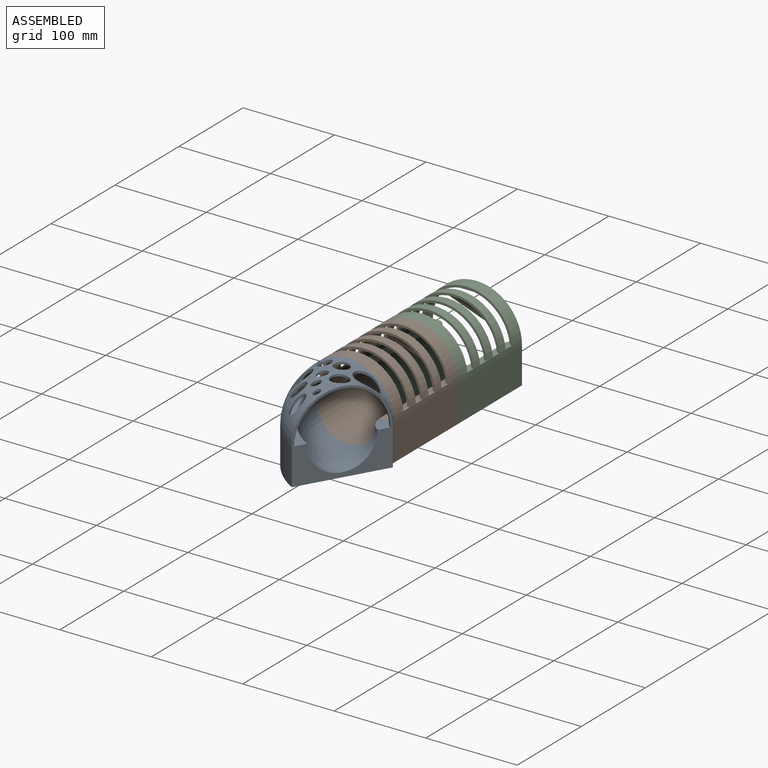
[diagram: assembled view]
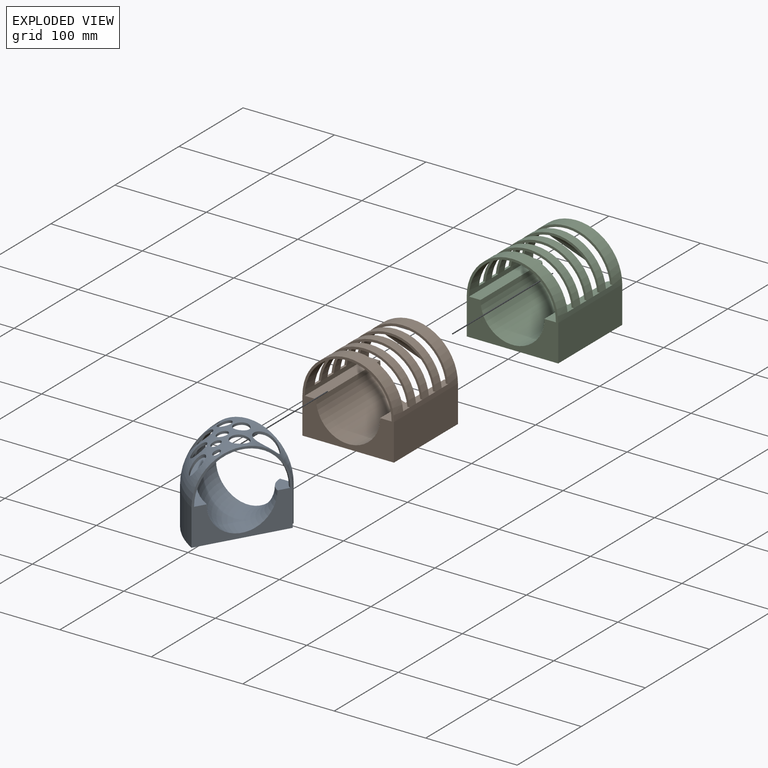
[diagram: exploded view]
GUIDED TOUR — MATED ASSEMBLY WITH SUBASSEMBLIES (Onshape document 4bfa7bd6c14763e04afc0b8b, AutoMate assembly 4bfa7bd6c14763e04afc0b8b_56770ba44863dff61e835462_78e4583de821c95102a4897f_default)

This assembly has 6 component occurrences arranged in 3 top-level units: 0 individual components plus 3 subassemblies (S0, S1, S2). The tour has two levels: first the top level, where each subassembly is treated as one rigid unit; then each subassembly is toured internally in its own section (nesting deeper than one subassembly level is flattened into its subassembly's section).

Components are labeled P0..P5 across the whole record; subassembly units are labeled S0..S2. A mate is a constraint between two units; its type names the relative motion it leaves free:
  FASTENED — locks the two components together rigidly (no relative motion).
Axis/direction vectors are unit vectors and 'through' points are millimeter coordinates, both in the assembly's world frame.

TOP-LEVEL MATES (between units; each subassembly's internal mates are listed in its own section)
  1. FASTENED "Fastened 2": S0 <-> S1, direction (0.000, 1.000, 0.000) through (-1.99, -146.95, 1.31) mm
  2. FASTENED "Fastened 1": S1 <-> S2, direction (0.000, 1.000, 0.000) through (-1.99, -46.95, 1.31) mm

TOP-LEVEL ASSEMBLY ORDER
  1. S1 — the base component [order verified]
  2. S0 [order verified]
  3. S2 [order verified]
Order-tag legend:
  [order verified] — this step's position reverses a verified removal order: the component was checked to insert without passing through the ones already placed.

Of the 6 component occurrences, 4 carry the full construction recipe — the FeatureScript program that regenerates the part's solid from scratch; the rest are supplied as boundary geometry only. Each toured unit is shown spotlighted twice — assembled, then exploded with a leader line back to its socket (green = recipe-attached component, orange = geometry-only, blue = subassembly unit; the rest desaturated gray).
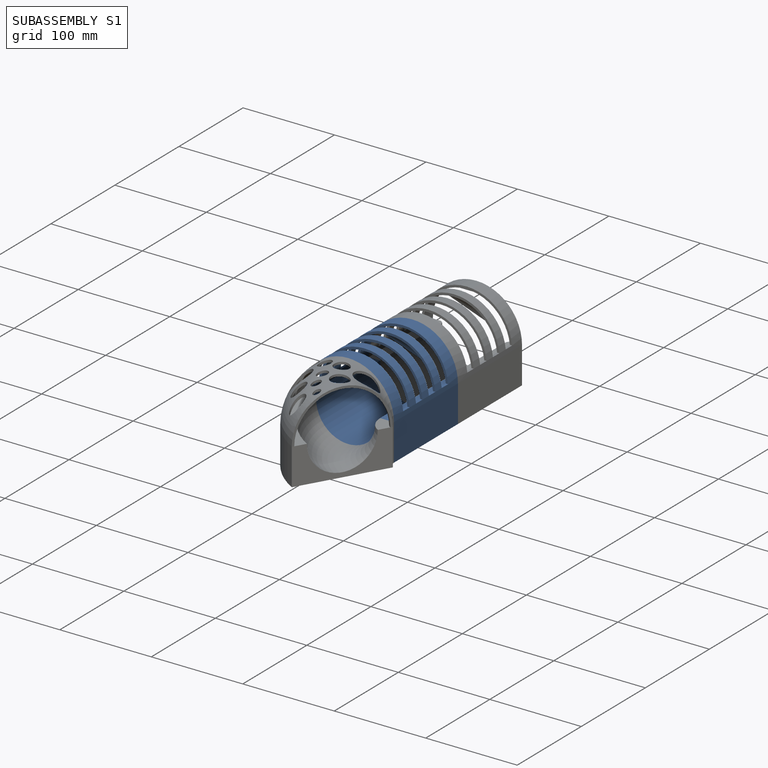
[diagram: subassembly S1 — assembled]
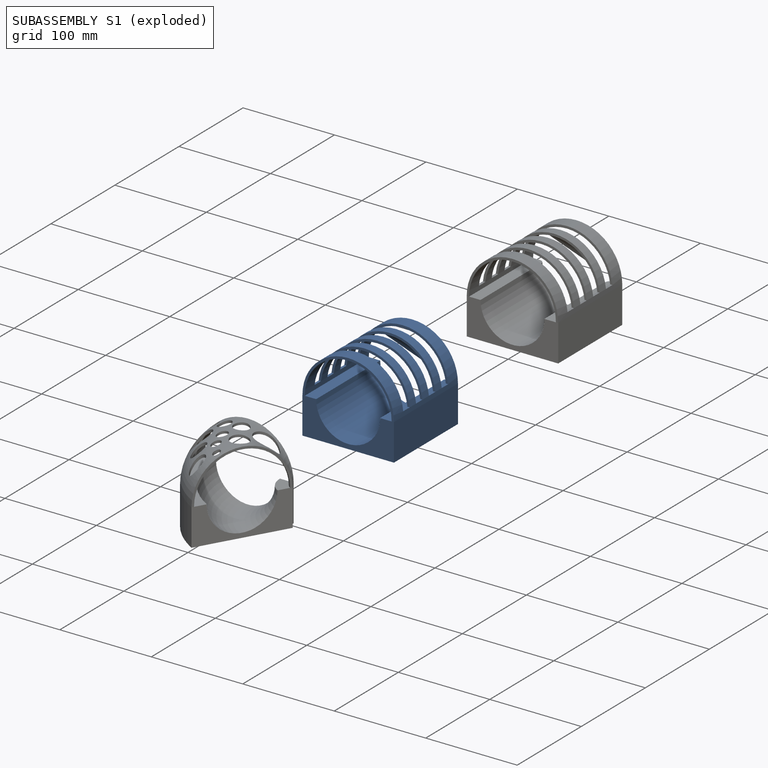
[diagram: subassembly S1 — exploded]
SUBASSEMBLY S1 — 2 components (P1, P4), of which 1 recipe-attached; toured below.
Held by: FASTENED mate "Fastened 2" to S0; FASTENED mate "Fastened 1" to S2.
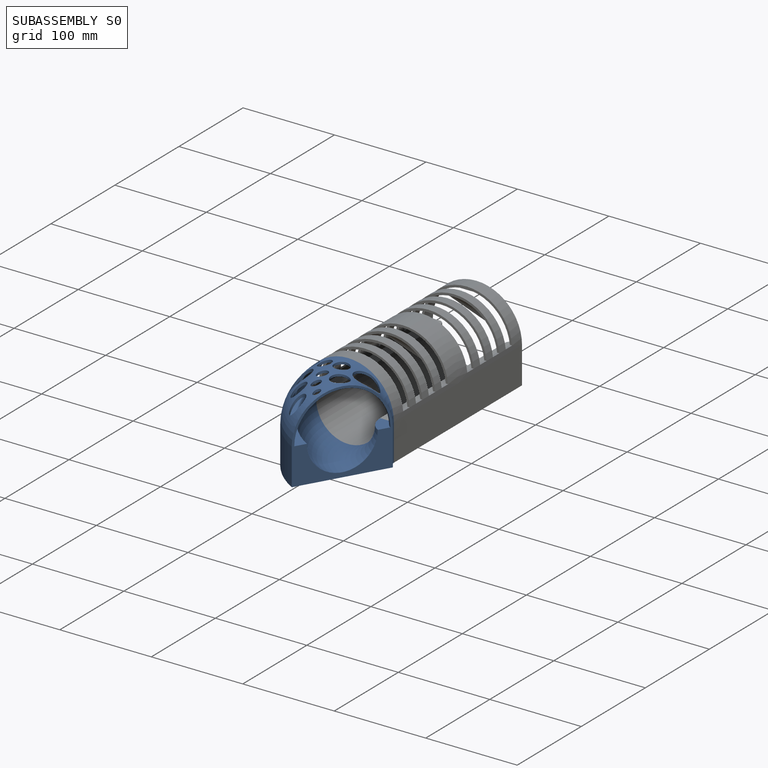
[diagram: subassembly S0 — assembled]
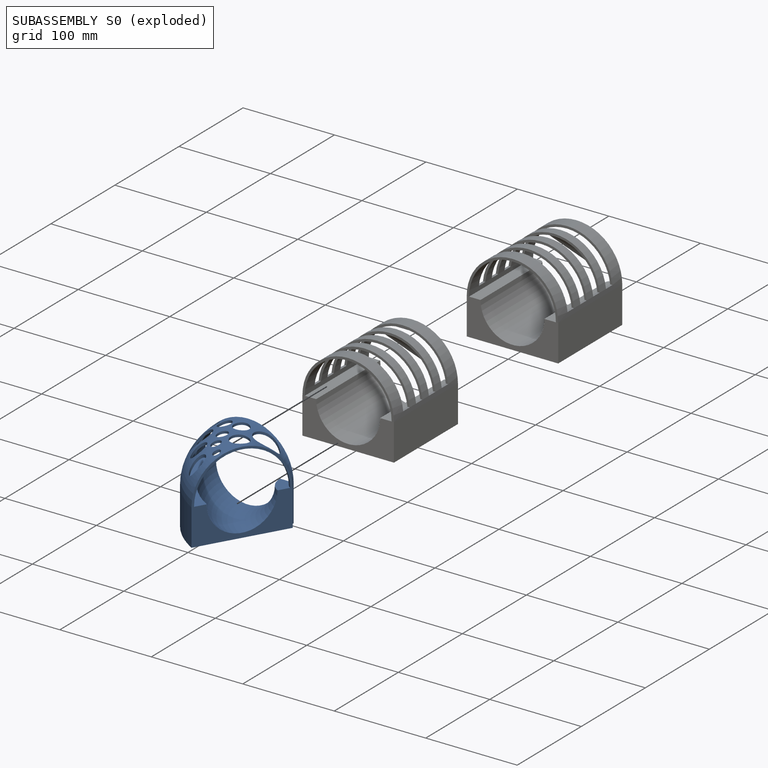
[diagram: subassembly S0 — exploded]
SUBASSEMBLY S0 — 2 components (P0, P5), of which 2 recipe-attached; toured below.
Held by: FASTENED mate "Fastened 2" to S1.
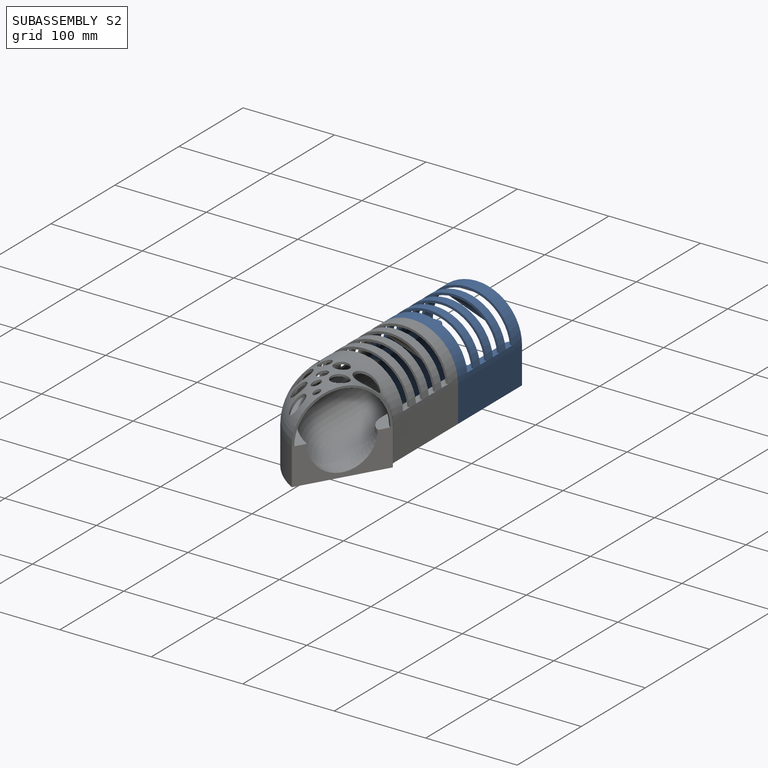
[diagram: subassembly S2 — assembled]
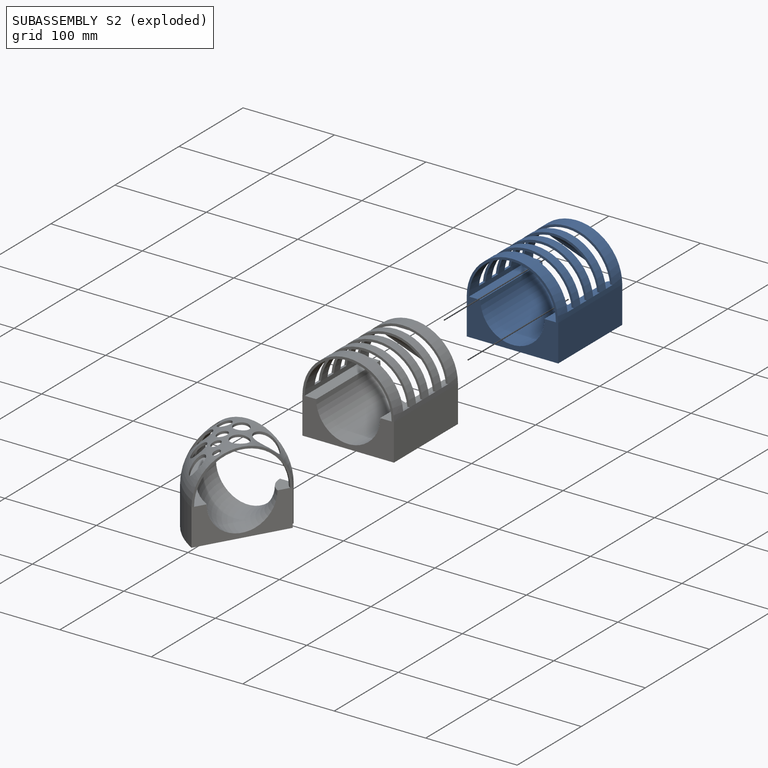
[diagram: subassembly S2 — exploded]
SUBASSEMBLY S2 — 2 components (P2, P3), of which 1 recipe-attached; toured below.
Held by: FASTENED mate "Fastened 1" to S1.
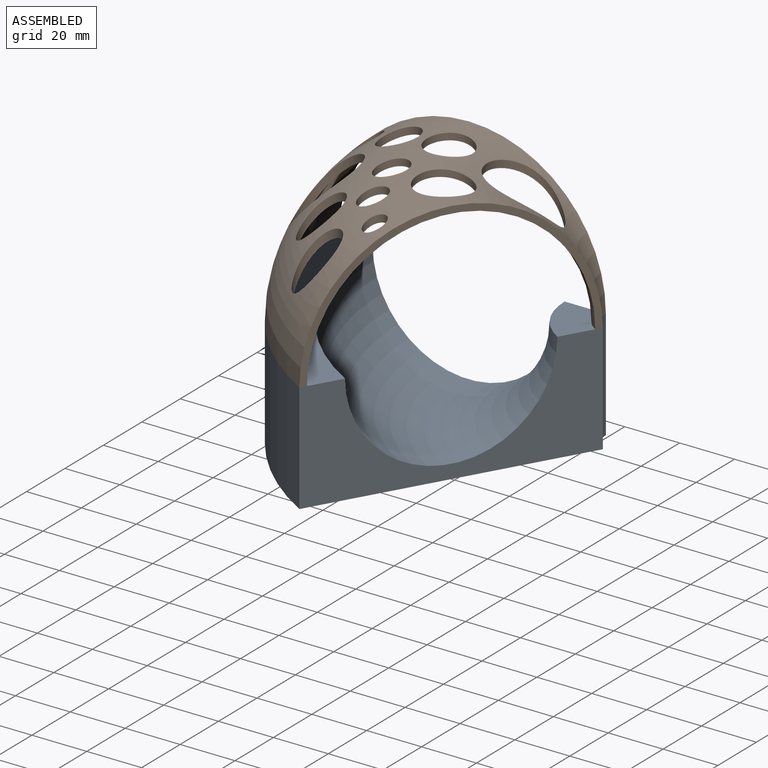
[diagram: subassembly S0 — assembled view]
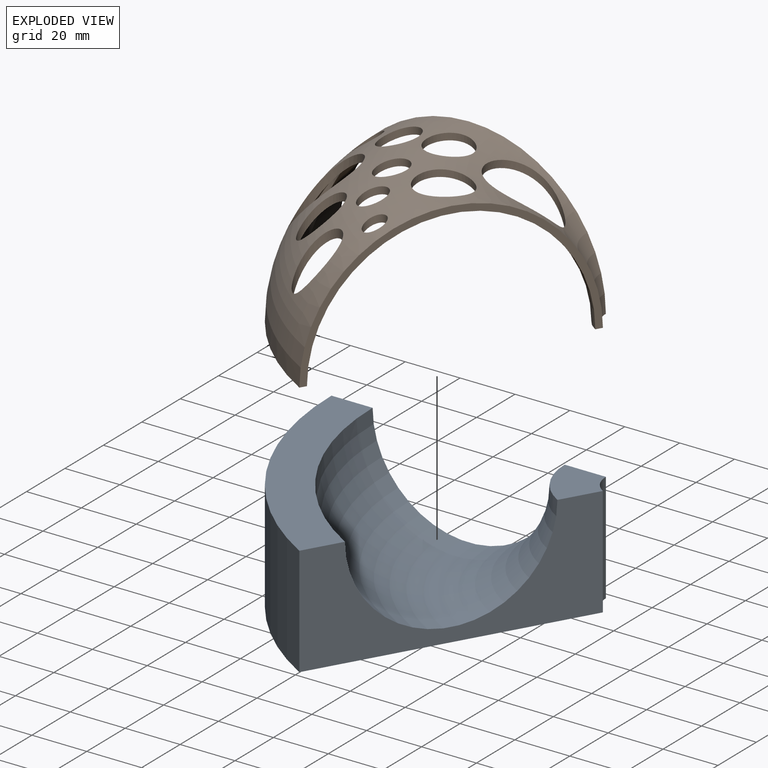
[diagram: subassembly S0 — exploded view]
SUBASSEMBLY S0 TOUR — 2 components, shown here in isolation at its own camera.

INTERNAL MATES
  1. FASTENED "Fastened 1": P5 <-> P0, direction (0.000, 0.000, -1.000) through (58.01, -146.95, 1.31) mm
  2. FASTENED "Fastened 1": P5 <-> P0, direction (0.000, 0.000, -1.000) through (58.01, -146.95, 1.31) mm

ASSEMBLY ORDER (within the subassembly)
  1. P5 — the base component [order verified]
  2. P0 [order verified]
Order-tag legend:
  [order verified] — this step's position reverses a verified removal order: the component was checked to insert without passing through the ones already placed.
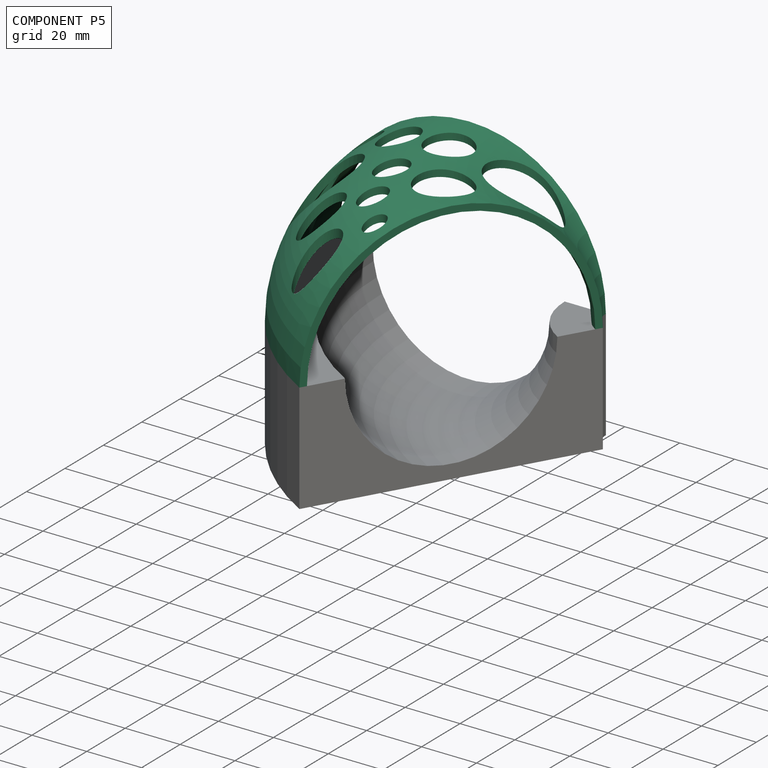
[diagram: component P5 — assembled]
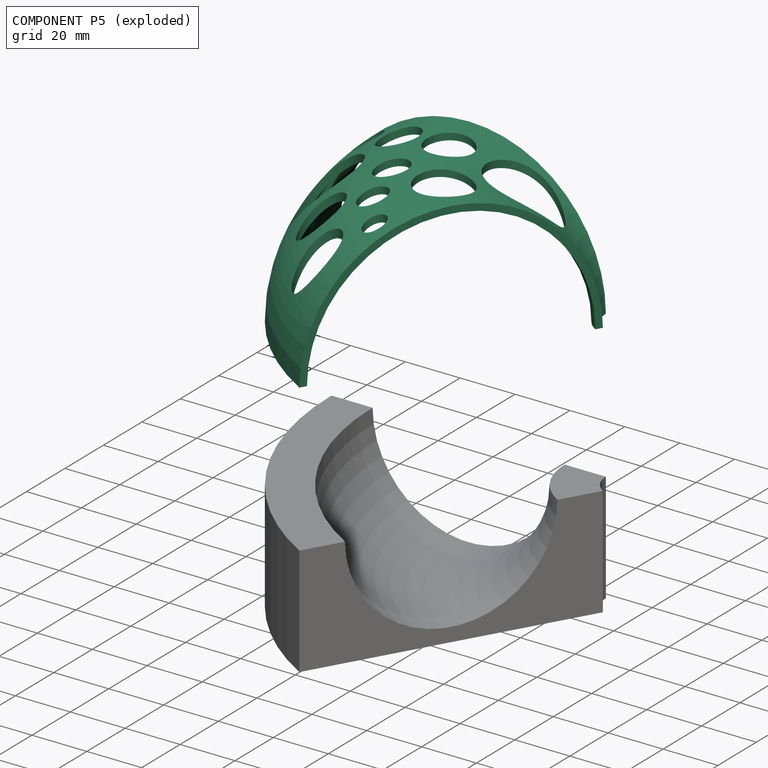
[diagram: component P5 — exploded]
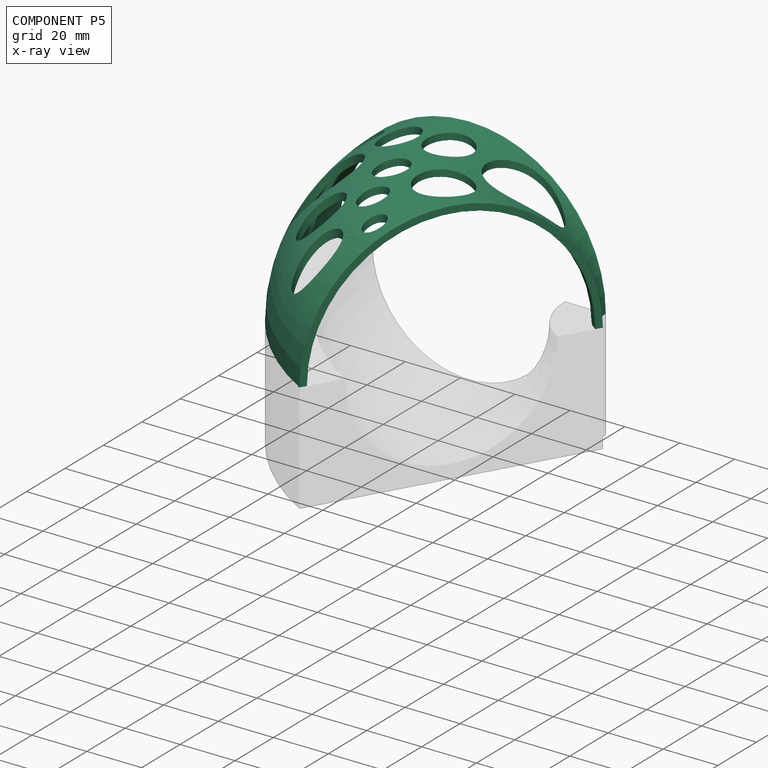
[diagram: component P5 — x-ray view]
COMPONENT P5 — recipe-attached (CADFS 00204274, mesh-verified: the recipe's output STEP matches this component's geometry to below the mesh-comparison resolution (tessellation chordal tolerance ~0.225 mm)).
Held by: FASTENED mate "Fastened 1" to P0; FASTENED mate "Fastened 1" to P0.
Construction recipe (FeatureScript — the CAD program that rebuilds this solid; sketch coordinates are in the units given by the * unit suffixes, e.g. mm):

FeatureScript 1511;
import(path : "onshape/std/geometry.fs", version : "1511.0");
import(path : "onshape/std/common.fs", version : "1511.0");
const mm = millimeter;
const VERTEX = EntityType.VERTEX;
const EDGE = EntityType.EDGE;
const FACE = EntityType.FACE;
const BODY = EntityType.BODY;
function v(x, y){return vector(x, y);}
function OD(order){return orderDisambiguation(order);}
function OSD(set){return originalSetDisambiguation(set);}
function TD(topology){return topologyDisambiguation(topology);}
function TDD(query){return trueDependencyDisambiguation(query);}
function sQuery(a, b, c) {return sketchEntityQuery(a, b, c);}

annotation { "Feature Type Name" : "Feature", "Feature Type Description" : "" }
export const myFeature = defineFeature(function(context is Context, id is Id, definition is map)
    precondition{}
    {
        {
            var Q0;
            Q0=qCreatedBy(makeId("Front.planeOp"),FACE);
            var sketch = newSketch(context, id + "F0", { "sketchPlane" : qUnion([Q0])});
            skArc(sketch, "E0", {"start": v(47.5, -15.52) * mm, "mid": v(0, 31.98) * mm, "end": v(-47.5, -15.52) * mm});
            skArc(sketch, "E1", {"start": v(50, -15.52) * mm, "mid": v(0, 34.48) * mm, "end": v(-50, -15.52) * mm});
            skLineSegment(sketch, "E2", {"start": v(-50, -15.52) * mm, "end": v(-47.5, -15.52) * mm});
            skLineSegment(sketch, "E3.trimOffspring", {"start": v(47.5, -15.52) * mm, "end": v(50, -15.52) * mm});
            skLineSegment(sketch, "E4", {"start": v(60, -15.52) * mm, "end": v(60, 3.24) * mm, "construction": true});
            skSolve(sketch);
        }
        {
            var Q0;
            Q0 = qSketchRegion(id + "F0", true);
            var Q1;
            Q1=sQuery(id+"F0.wireOp",EDGE,"E4");
            revolve(context, id + "F1", {"entities" : qUnion([Q0]), "axis" : qUnion([Q1]), "revolveType" : RevolveType.ONE_DIRECTION, "oppositeDirection" : true, "angle" : 60 * degree});
        }
        {
            var Q0;
            Q0=qCreatedBy(makeId("Top.planeOp"),FACE);
            var sketch = newSketch(context, id + "F2", { "sketchPlane" : qUnion([Q0])});
            skCircle(sketch, "E5", {"center": v(-5.04, 78.5) * mm, "radius": 4.99 * mm});
            skCircle(sketch, "E6", {"center": v(-13.99, 58.01) * mm, "radius": 11.47 * mm});
            skCircle(sketch, "E7", {"center": v(-25.76, 36.36) * mm, "radius": 7.6 * mm});
            skCircle(sketch, "E8", {"center": v(9.08, 56.37) * mm, "radius": 7.15 * mm});
            skCircle(sketch, "E9", {"center": v(17.8, 39.65) * mm, "radius": 8.24 * mm});
            skCircle(sketch, "E10", {"center": v(4.84, 15.64) * mm, "radius": 9.8 * mm});
            skCircle(sketch, "E11", {"center": v(-3.16, 35.18) * mm, "radius": 5.91 * mm});
            skCircle(sketch, "E12", {"center": v(-21.29, 8.34) * mm, "radius": 3.9 * mm});
            skCircle(sketch, "E13", {"center": v(-35.65, 18) * mm, "radius": 7.7 * mm});
            skCircle(sketch, "E14", {"center": v(-14.93, 23.17) * mm, "radius": 5.07 * mm});
            skCircle(sketch, "E15", {"center": v(31.92, 17.29) * mm, "radius": 12.5 * mm});
            skCircle(sketch, "E16", {"center": v(6.26, 72.37) * mm, "radius": 4.99 * mm});
            skSolve(sketch);
        }
        {
            var Q0;
            Q0 = qSketchRegion(id + "F2", true);
            var Q1;
            Q1=sQuery(id+"F2.wireOp",EDGE,"E16");
            extrude(context, id + "F3", {"entities" : qUnion([Q0]), "operationType" : NewBodyOperationType.REMOVE, "surfaceEntities" : qUnion([Q1]), "depth" : 40 * mm, "hasSecondDirection" : true, "secondDirectionOppositeDirection" : true, "secondDirectionDepth" : 25 * mm});
        }
    });
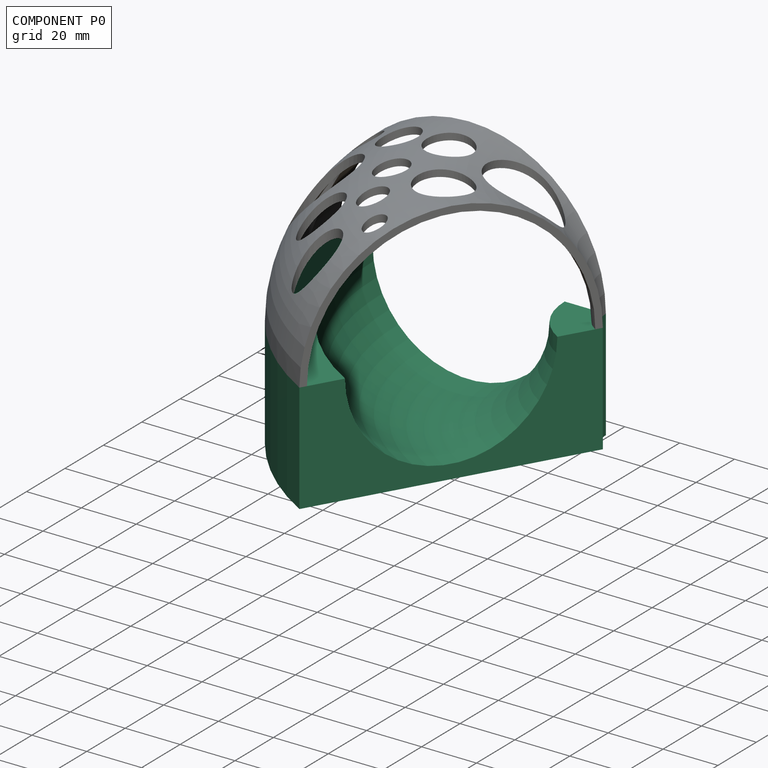
[diagram: component P0 — assembled]
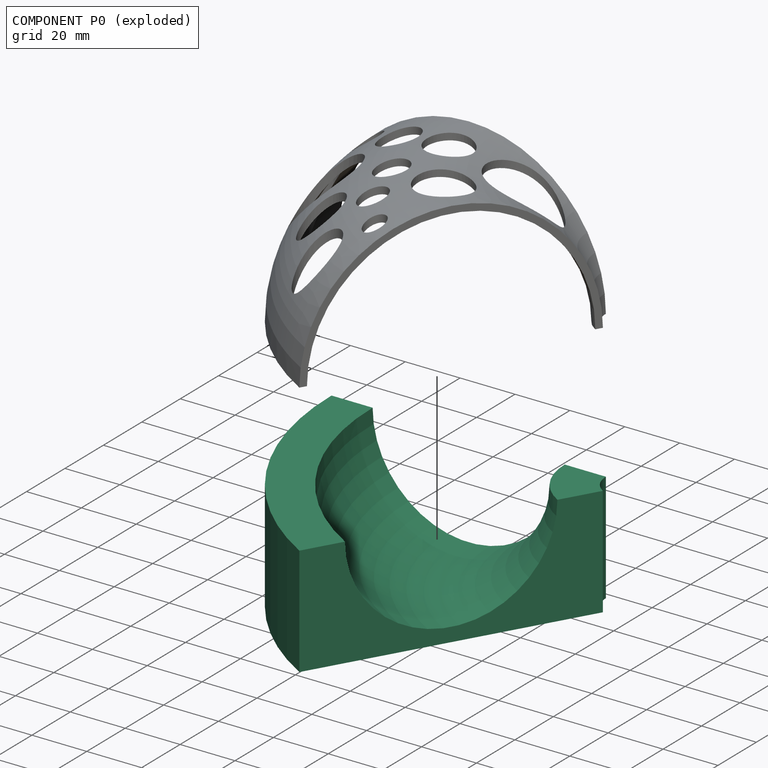
[diagram: component P0 — exploded]
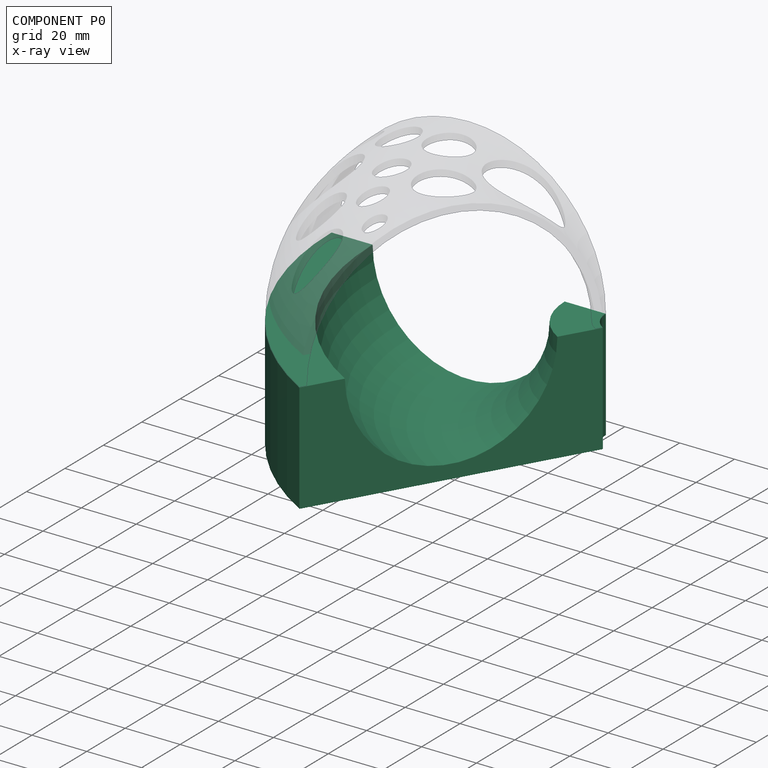
[diagram: component P0 — x-ray view]
COMPONENT P0 — recipe-attached (CADFS 00204273, mesh-verified: the recipe's output STEP matches this component's geometry to below the mesh-comparison resolution (tessellation chordal tolerance ~0.221 mm)).
Held by: FASTENED mate "Fastened 1" to P5; FASTENED mate "Fastened 1" to P5.
Construction recipe (FeatureScript — the CAD program that rebuilds this solid; sketch coordinates are in the units given by the * unit suffixes, e.g. mm):

FeatureScript 1511;
import(path : "onshape/std/geometry.fs", version : "1511.0");
import(path : "onshape/std/common.fs", version : "1511.0");
const mm = millimeter;
const VERTEX = EntityType.VERTEX;
const EDGE = EntityType.EDGE;
const FACE = EntityType.FACE;
const BODY = EntityType.BODY;
function v(x, y){return vector(x, y);}
function OD(order){return orderDisambiguation(order);}
function OSD(set){return originalSetDisambiguation(set);}
function TD(topology){return topologyDisambiguation(topology);}
function TDD(query){return trueDependencyDisambiguation(query);}
function sQuery(a, b, c) {return sketchEntityQuery(a, b, c);}

annotation { "Feature Type Name" : "Feature", "Feature Type Description" : "" }
export const myFeature = defineFeature(function(context is Context, id is Id, definition is map)
    precondition{}
    {
        {
            var Q0;
            Q0=qCreatedBy(makeId("Front.planeOp"),FACE);
            var sketch = newSketch(context, id + "F0", { "sketchPlane" : qUnion([Q0])});
            skLineSegment(sketch, "E0.bottom", {"start": v(-50, -19.67) * mm, "end": v(0, -19.67) * mm});
            skLineSegment(sketch, "E0.top", {"start": v(-50, 20.33) * mm, "end": v(0, 20.33) * mm});
            skLineSegment(sketch, "E0.left", {"start": v(-50, -19.67) * mm, "end": v(-50, 20.33) * mm});
            skLineSegment(sketch, "E1.MirrorCS", {"start": v(50, -19.67) * mm, "end": v(0, -19.67) * mm});
            skLineSegment(sketch, "E2.MirrorCS", {"start": v(50, -19.67) * mm, "end": v(50, 20.33) * mm});
            skLineSegment(sketch, "E3.MirrorCS", {"start": v(50, 20.33) * mm, "end": v(0, 20.33) * mm});
            skArc(sketch, "E4", {"start": v(-35, 20.33) * mm, "mid": v(0, -14.67) * mm, "end": v(35, 20.33) * mm});
            skLineSegment(sketch, "E5", {"start": v(50, 20.33) * mm, "end": v(60, 20.33) * mm, "construction": true});
            skLineSegment(sketch, "E6", {"start": v(60, 20.33) * mm, "end": v(60, -18.07) * mm, "construction": true});
            skSolve(sketch);
        }
        {
            var Q0;
            Q0=makeQuery(id+"F0.imprint","IMPRINT",FACE,{"disambiguationData":[TD([[makeQuery(id+"F0.imprint","IMPRINT",EDGE,{"derivedFrom":sQuery(id+"F0.wireOp",EDGE,"E0.bottom")}),1.0]])]});
            var Q1;
            Q1=sQuery(id+"F0.wireOp",EDGE,"E6");
            revolve(context, id + "F1", {"entities" : qUnion([Q0]), "axis" : qUnion([Q1]), "revolveType" : RevolveType.ONE_DIRECTION, "angle" : 60 * degree});
        }
    });
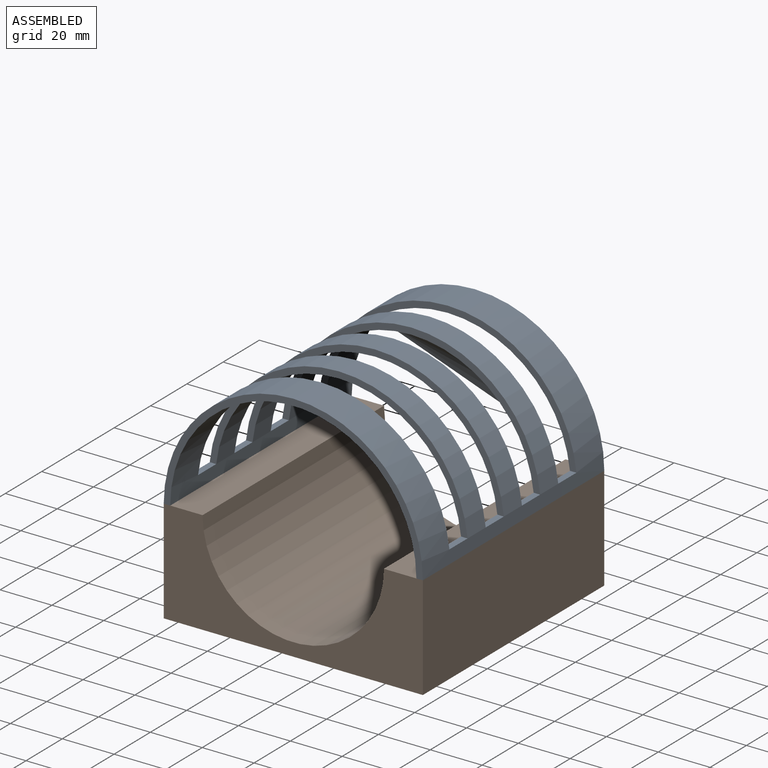
[diagram: subassembly S1 — assembled view]
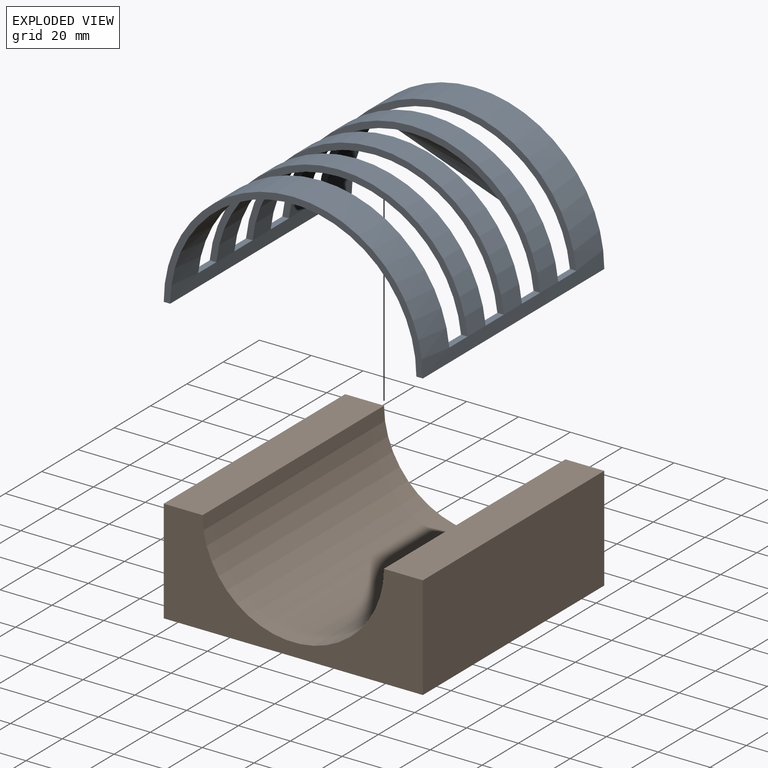
[diagram: subassembly S1 — exploded view]
SUBASSEMBLY S1 TOUR — 2 components, shown here in isolation at its own camera.

INTERNAL MATES
  1. FASTENED "Fastened 1": P1 <-> P4, direction (0.000, 0.000, -1.000) through (48.01, -96.95, 1.31) mm
  2. FASTENED "Fastened 1": P1 <-> P4, direction (0.000, 0.000, -1.000) through (48.01, -96.95, 1.31) mm

ASSEMBLY ORDER (within the subassembly)
  1. P4 — the base component [order verified]
  2. P1 [order verified]
Order-tag legend:
  [order verified] — this step's position reverses a verified removal order: the component was checked to insert without passing through the ones already placed.
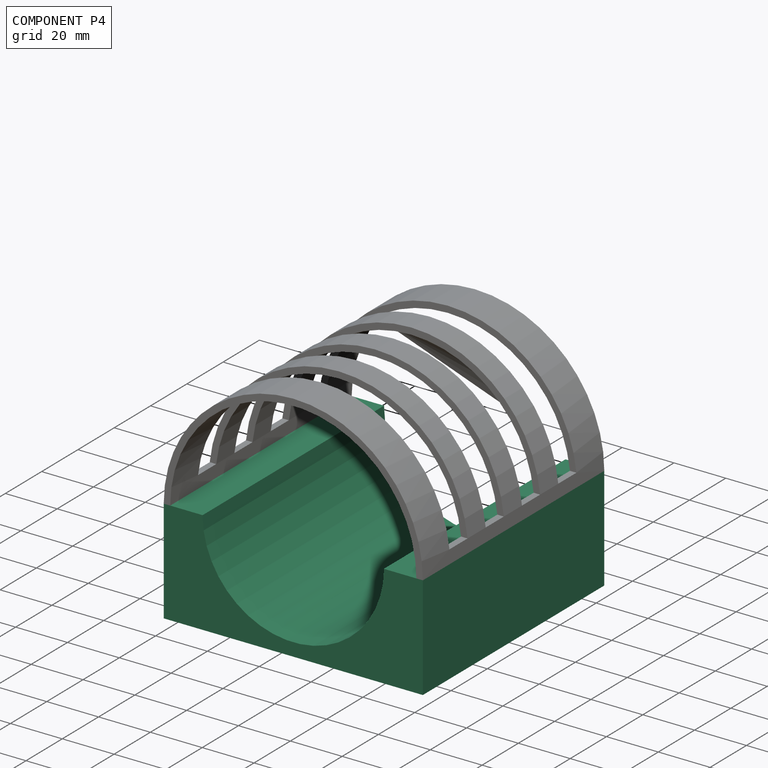
[diagram: component P4 — assembled]
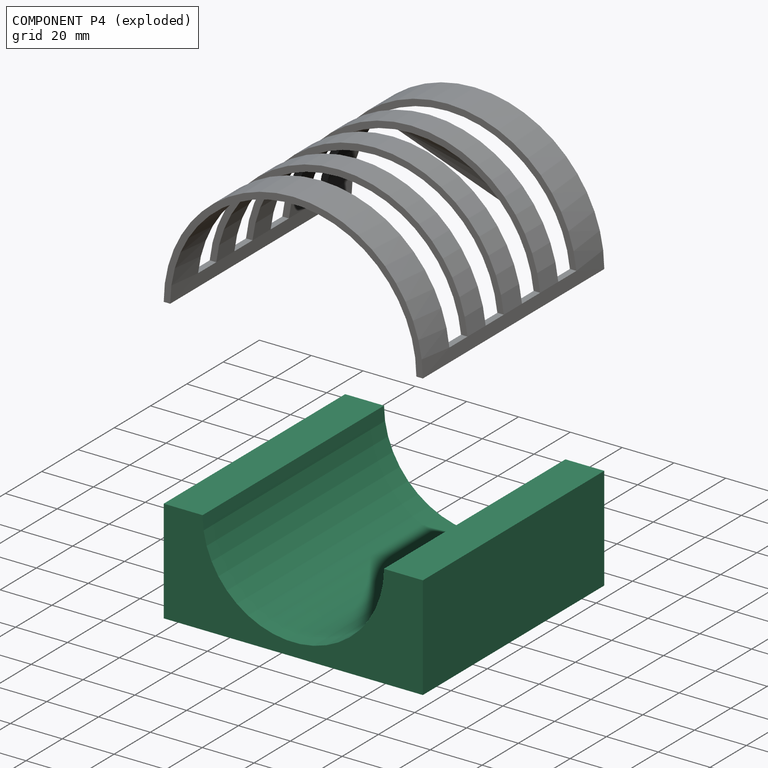
[diagram: component P4 — exploded]
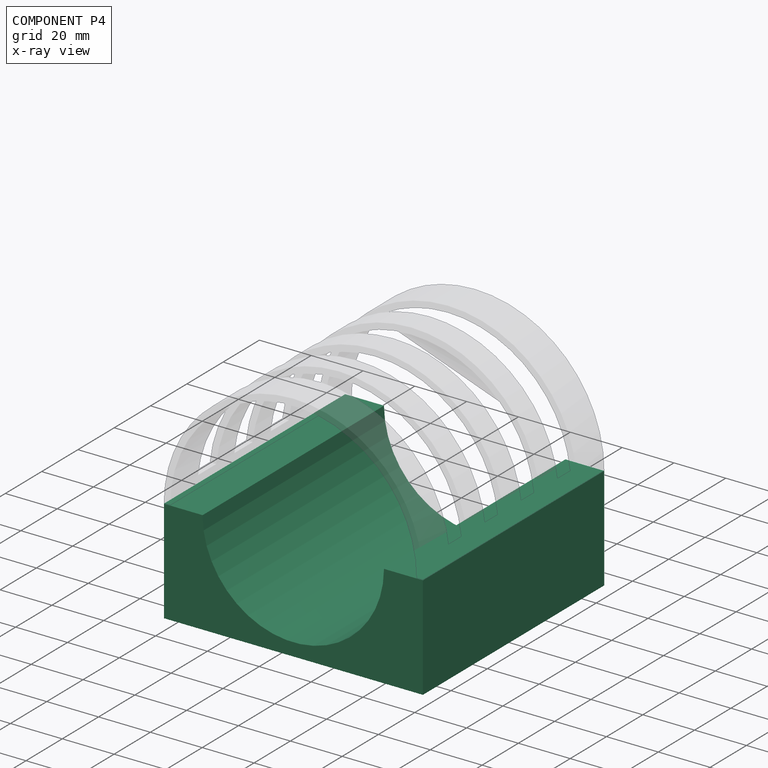
[diagram: component P4 — x-ray view]
COMPONENT P4 — recipe-attached (CADFS 00204271, mesh-verified: the recipe's output STEP matches this component's geometry to below the mesh-comparison resolution (tessellation chordal tolerance ~0.22 mm)).
Held by: FASTENED mate "Fastened 1" to P1; FASTENED mate "Fastened 1" to P1.
Construction recipe (FeatureScript — the CAD program that rebuilds this solid; sketch coordinates are in the units given by the * unit suffixes, e.g. mm):

FeatureScript 1511;
import(path : "onshape/std/geometry.fs", version : "1511.0");
import(path : "onshape/std/common.fs", version : "1511.0");
const mm = millimeter;
const VERTEX = EntityType.VERTEX;
const EDGE = EntityType.EDGE;
const FACE = EntityType.FACE;
const BODY = EntityType.BODY;
function v(x, y){return vector(x, y);}
function OD(order){return orderDisambiguation(order);}
function OSD(set){return originalSetDisambiguation(set);}
function TD(topology){return topologyDisambiguation(topology);}
function TDD(query){return trueDependencyDisambiguation(query);}
function sQuery(a, b, c) {return sketchEntityQuery(a, b, c);}

annotation { "Feature Type Name" : "Feature", "Feature Type Description" : "" }
export const myFeature = defineFeature(function(context is Context, id is Id, definition is map)
    precondition{}
    {
        {
            var Q0;
            Q0=qCreatedBy(makeId("Front.planeOp"),FACE);
            var sketch = newSketch(context, id + "F0", { "sketchPlane" : qUnion([Q0])});
            skLineSegment(sketch, "E0.bottom", {"start": v(-50, 0) * mm, "end": v(0, 0) * mm});
            skLineSegment(sketch, "E0.top", {"start": v(-50, 40) * mm, "end": v(0, 40) * mm});
            skLineSegment(sketch, "E0.left", {"start": v(-50, 0) * mm, "end": v(-50, 40) * mm});
            skLineSegment(sketch, "E1.MirrorCS", {"start": v(50, 0) * mm, "end": v(0, 0) * mm});
            skLineSegment(sketch, "E2.MirrorCS", {"start": v(50, 0) * mm, "end": v(50, 40) * mm});
            skLineSegment(sketch, "E3.MirrorCS", {"start": v(50, 40) * mm, "end": v(0, 40) * mm});
            skArc(sketch, "E4", {"start": v(-35, 40) * mm, "mid": v(0, 5) * mm, "end": v(35, 40) * mm});
            skSolve(sketch);
        }
        {
            var Q0;
            Q0=makeQuery(id+"F0.imprint","IMPRINT",FACE,{"disambiguationData":[TD([[makeQuery(id+"F0.imprint","IMPRINT",EDGE,{"derivedFrom":sQuery(id+"F0.wireOp",EDGE,"E0.bottom")}),1.0]])]});
            extrude(context, id + "F1", {"entities" : qUnion([Q0]), "endBound" : BoundingType.SYMMETRIC, "depth" : 100 * mm});
        }
    });
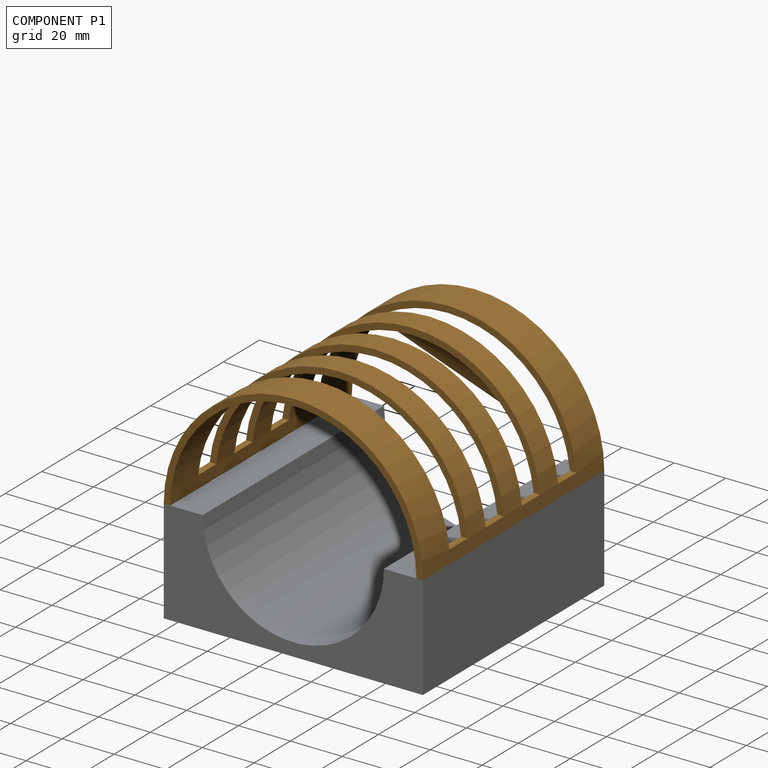
[diagram: component P1 — assembled]
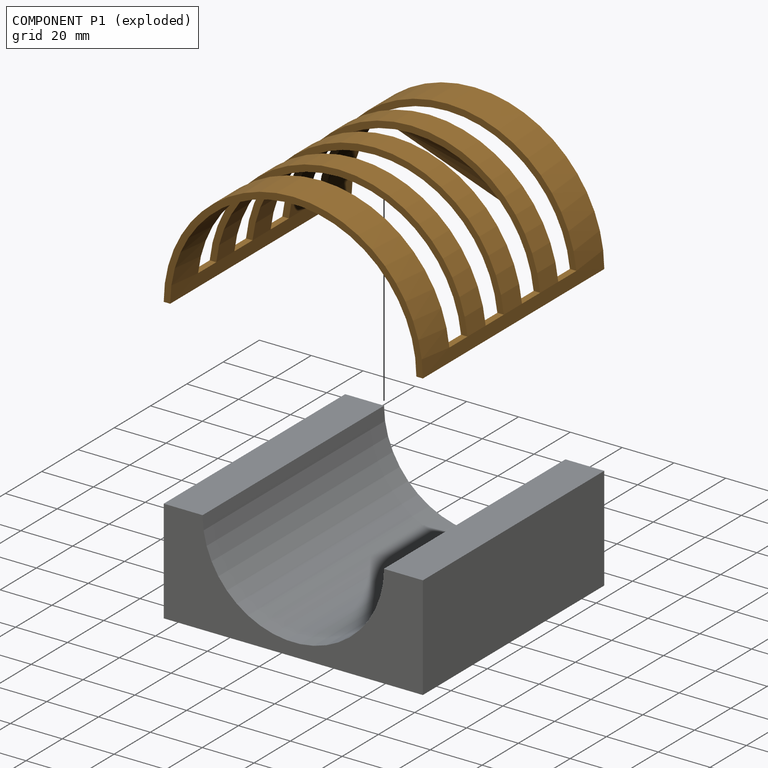
[diagram: component P1 — exploded]
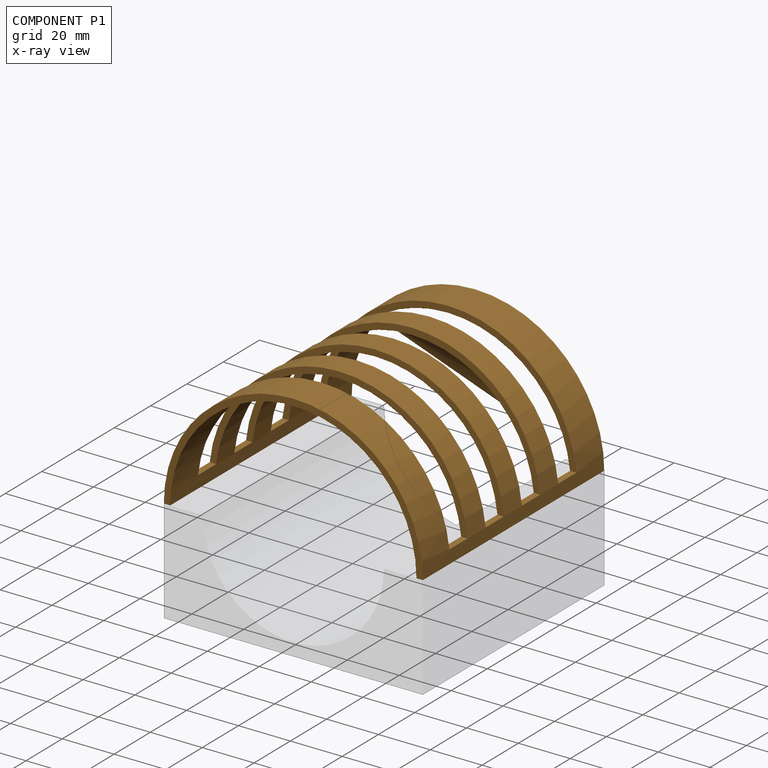
[diagram: component P1 — x-ray view]
COMPONENT P1 — geometry summary (no construction recipe available for this part):
  bounding box: 100.0 x 100.0 x 50.0 mm
  B-rep topology: 1 solid, 22 faces, 120 edges
  volume: 23975 mm^3 (5% of its bounding box)
Held by: FASTENED mate "Fastened 1" to P4; FASTENED mate "Fastened 1" to P4.
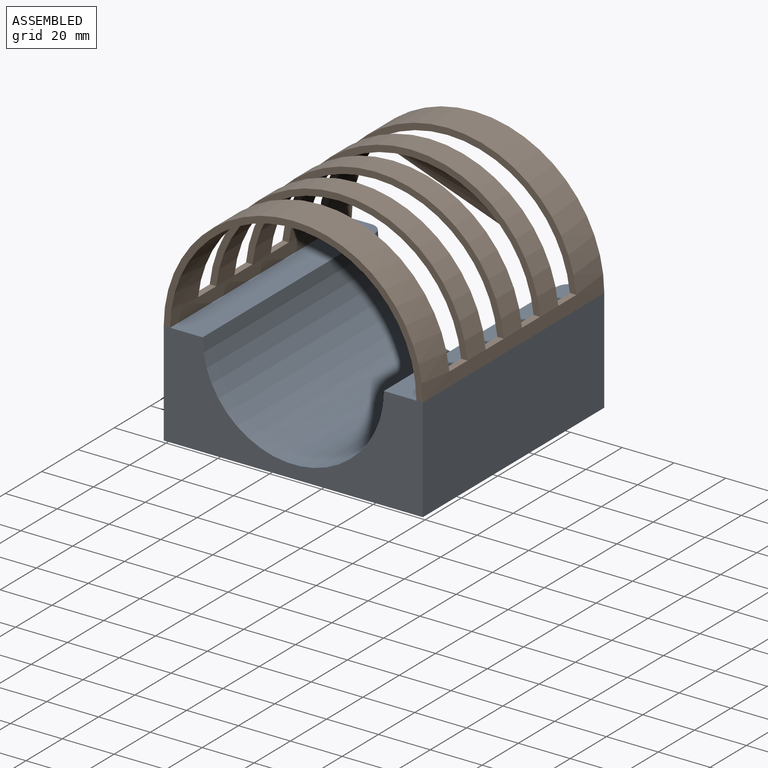
[diagram: subassembly S2 — assembled view]
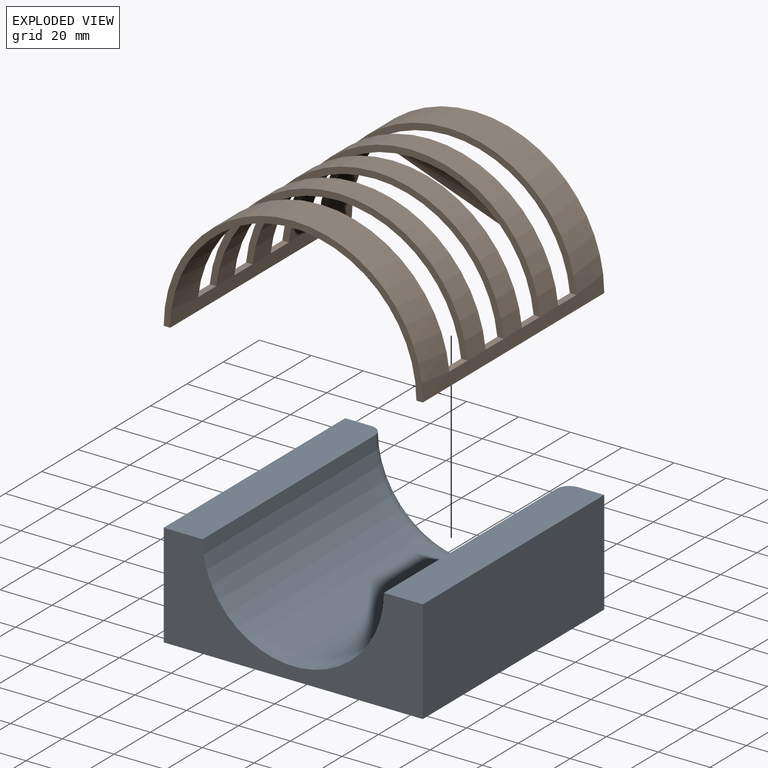
[diagram: subassembly S2 — exploded view]
SUBASSEMBLY S2 TOUR — 2 components, shown here in isolation at its own camera.

INTERNAL MATES
  1. FASTENED "Fastened 1": P3 <-> P2, direction (0.000, 0.000, -1.000) through (-51.99, 3.05, 1.31) mm
  2. FASTENED "Fastened 1": P3 <-> P2, direction (0.000, 0.000, -1.000) through (-51.99, 3.05, 1.31) mm

ASSEMBLY ORDER (within the subassembly)
  1. P3 — the base component [order verified]
  2. P2 [order verified]
Order-tag legend:
  [order verified] — this step's position reverses a verified removal order: the component was checked to insert without passing through the ones already placed.
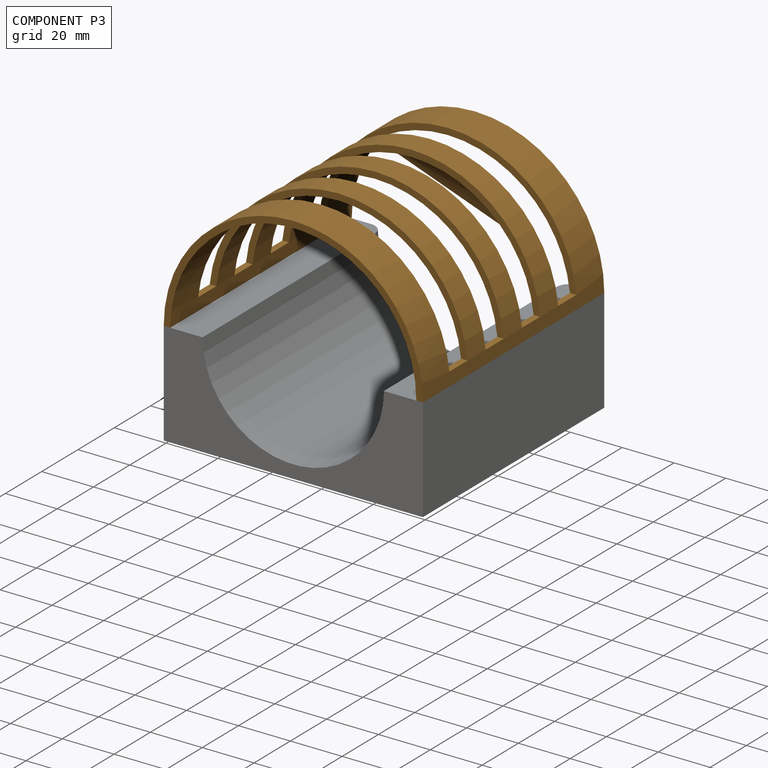
[diagram: component P3 — assembled]
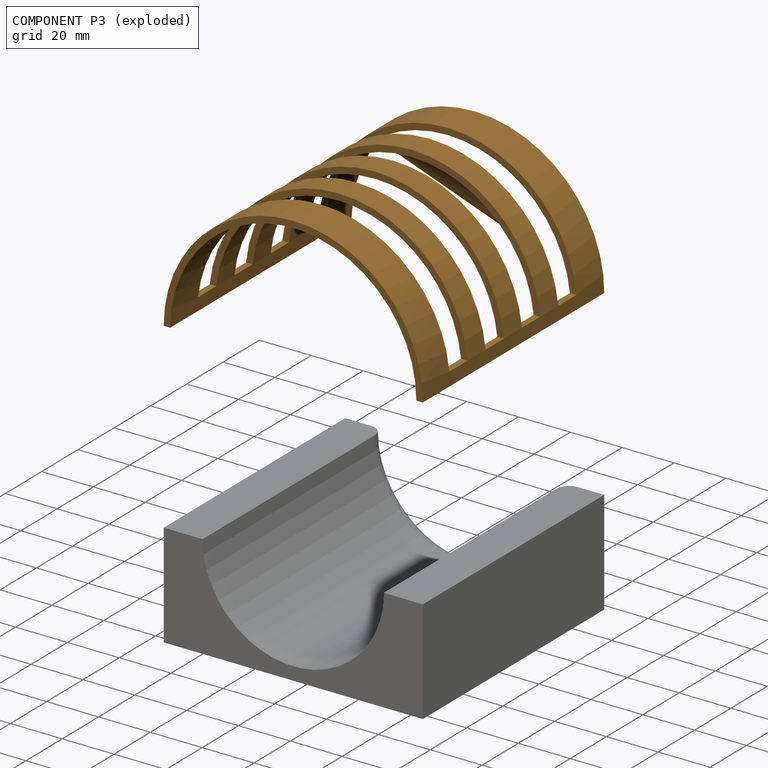
[diagram: component P3 — exploded]
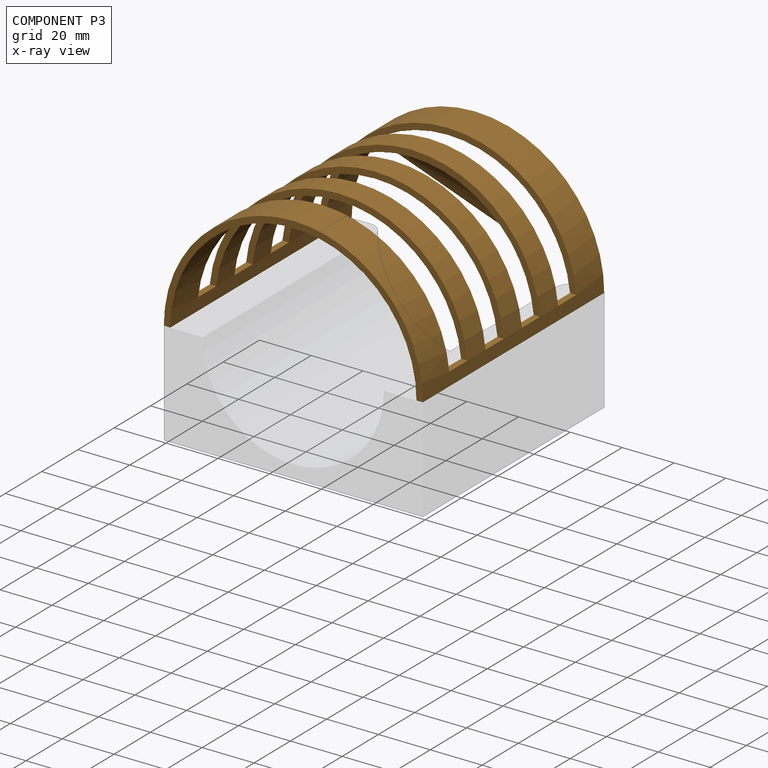
[diagram: component P3 — x-ray view]
COMPONENT P3 — geometry summary (no construction recipe available for this part):
  bounding box: 100.0 x 100.0 x 50.0 mm
  B-rep topology: 1 solid, 22 faces, 120 edges
  volume: 23975 mm^3 (5% of its bounding box)
Held by: FASTENED mate "Fastened 1" to P2; FASTENED mate "Fastened 1" to P2.
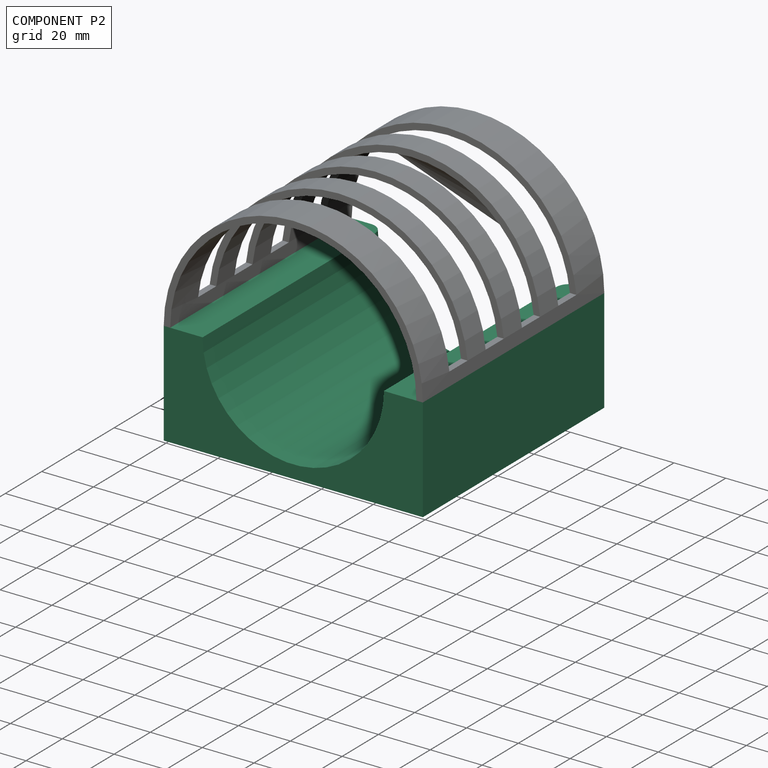
[diagram: component P2 — assembled]
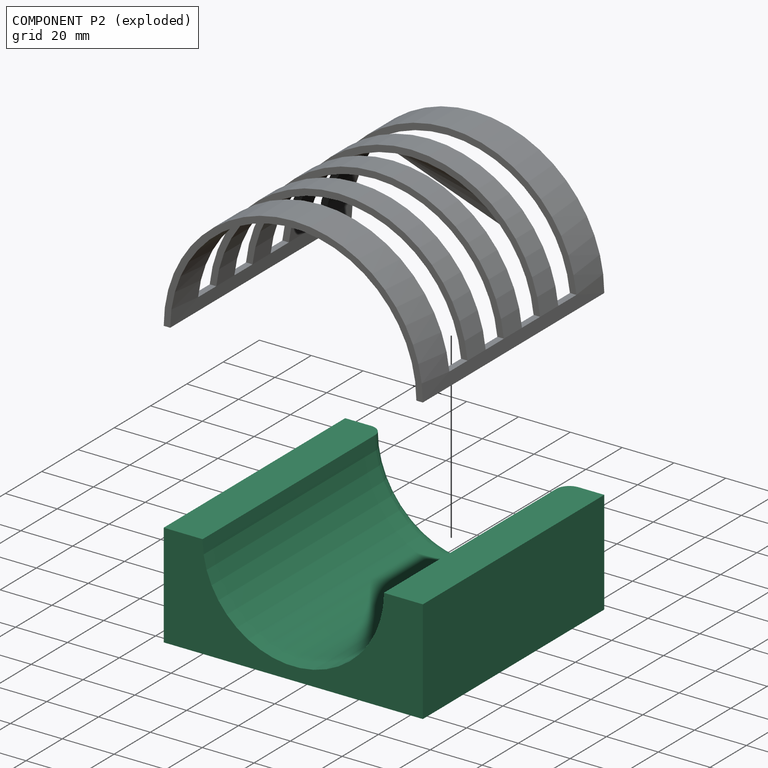
[diagram: component P2 — exploded]
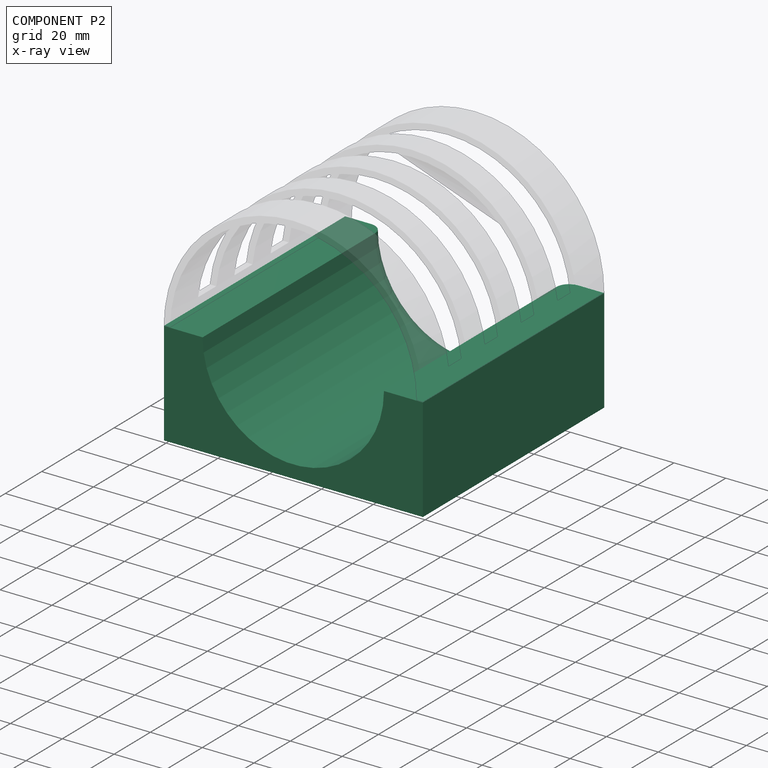
[diagram: component P2 — x-ray view]
COMPONENT P2 — recipe-attached (CADFS 00204270, mesh-verified: the recipe's output STEP matches this component's geometry to below the mesh-comparison resolution (tessellation chordal tolerance ~0.22 mm)).
Held by: FASTENED mate "Fastened 1" to P3; FASTENED mate "Fastened 1" to P3.
Construction recipe (FeatureScript — the CAD program that rebuilds this solid; sketch coordinates are in the units given by the * unit suffixes, e.g. mm):

FeatureScript 1511;
import(path : "onshape/std/geometry.fs", version : "1511.0");
import(path : "onshape/std/common.fs", version : "1511.0");
const mm = millimeter;
const VERTEX = EntityType.VERTEX;
const EDGE = EntityType.EDGE;
const FACE = EntityType.FACE;
const BODY = EntityType.BODY;
function v(x, y){return vector(x, y);}
function OD(order){return orderDisambiguation(order);}
function OSD(set){return originalSetDisambiguation(set);}
function TD(topology){return topologyDisambiguation(topology);}
function TDD(query){return trueDependencyDisambiguation(query);}
function sQuery(a, b, c) {return sketchEntityQuery(a, b, c);}

annotation { "Feature Type Name" : "Feature", "Feature Type Description" : "" }
export const myFeature = defineFeature(function(context is Context, id is Id, definition is map)
    precondition{}
    {
        {
            var Q0;
            Q0=qCreatedBy(makeId("Front.planeOp"),FACE);
            var sketch = newSketch(context, id + "F0", { "sketchPlane" : qUnion([Q0])});
            skLineSegment(sketch, "E0.bottom", {"start": v(-50, 0) * mm, "end": v(0, 0) * mm});
            skLineSegment(sketch, "E0.top", {"start": v(-50, 40) * mm, "end": v(0, 40) * mm});
            skLineSegment(sketch, "E0.left", {"start": v(-50, 0) * mm, "end": v(-50, 40) * mm});
            skLineSegment(sketch, "E1.MirrorCS", {"start": v(50, 0) * mm, "end": v(0, 0) * mm});
            skLineSegment(sketch, "E2.MirrorCS", {"start": v(50, 0) * mm, "end": v(50, 40) * mm});
            skLineSegment(sketch, "E3.MirrorCS", {"start": v(50, 40) * mm, "end": v(0, 40) * mm});
            skArc(sketch, "E4", {"start": v(-35, 40) * mm, "mid": v(0, 5) * mm, "end": v(35, 40) * mm});
            skSolve(sketch);
        }
        {
            var Q0;
            Q0=makeQuery(id+"F0.imprint","IMPRINT",FACE,{"disambiguationData":[TD([[makeQuery(id+"F0.imprint","IMPRINT",EDGE,{"derivedFrom":sQuery(id+"F0.wireOp",EDGE,"E0.bottom")}),1.0]])]});
            extrude(context, id + "F1", {"entities" : qUnion([Q0]), "endBound" : BoundingType.SYMMETRIC, "depth" : 100 * mm});
        }
        {
            var Q0;
            Q0=makeQuery(id+"F1.opExtrude","CAP_EDGE",EDGE,{"disambiguationData":[OSD([sQuery(id+"F0.wireOp",EDGE,"E4")])],"isStart":true});
            fillet(context, id + "F2", {"entities" : qUnion([Q0]), "radius" : 5 * mm, "tangentPropagation" : true, "allowEdgeOverflow" : false});
        }
    });
PROVENANCE & LICENSES
Assembly (occurrences, transforms, mates, per-part STEP geometry): AutoMate dataset, Zenodo record 7776208, CC0.
Construction recipes: CADFS (HuggingFace VladPyatov/CADFS, CC-BY-4.0, layered over the ABC dataset), FeatureScript reconstruction programs keyed by ABC model id.
Join: ABC meta listings map ABC model id -> Onshape documentId; within a shared document, parts are matched by geometric signature (bounding-box dims + volume at 0.1% relative tolerance, exact B-rep face/solid counts).
Verification: 4 of this assembly's 6 components carry a recipe attachment, and every attachment is mesh-verified: the CADFS STEP and the AutoMate member STEP were compared as meshes in their shared local frame (symmetric sampled-point-to-mesh distance); worst across the 4 attachments: below the mesh-comparison resolution (tessellation chordal tolerance ~0.225 mm) on a 150 mm part.
Renders: orthographic iso camera (az 35 / el 25); the floor grid conveys scale (grid pitch printed in each image; no ruler). In the exploded view each component is displaced by its stored offset vector: the offsets alone carry the explosion direction (mate normal/axis signs are not orientation cues and do not encode it), and separation distances are assigned per mate-chain, not proportionally to assembly-order depth.
